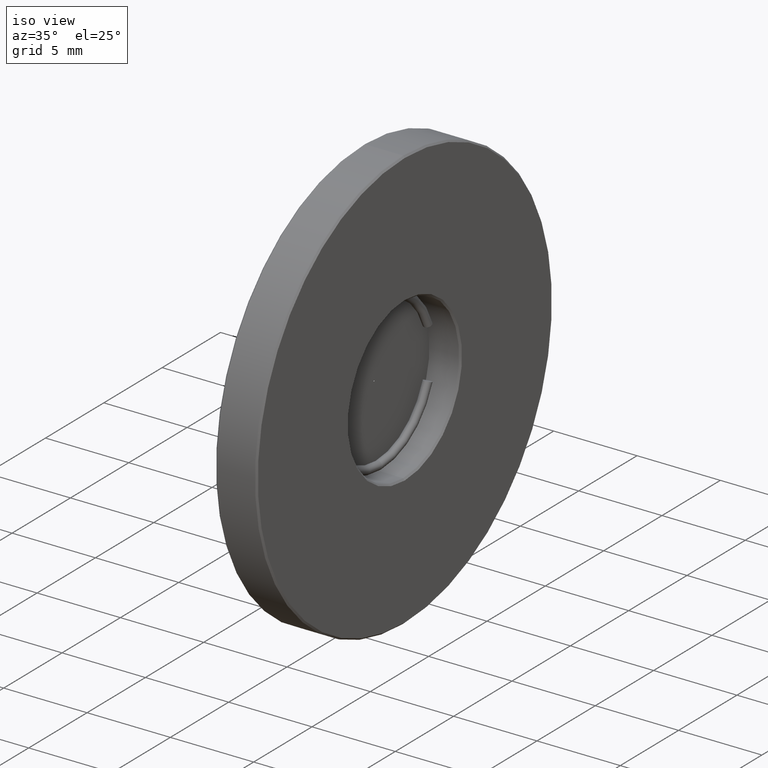
[diagram: clean part render]
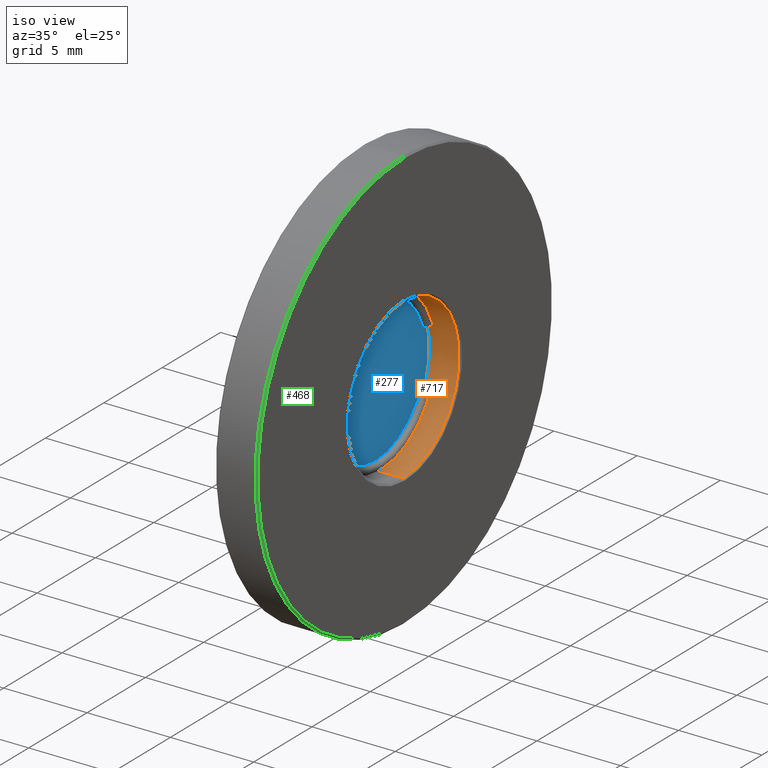
[diagram: same view with three faces highlighted in distinct colors, each labeled with its STEP entity id]
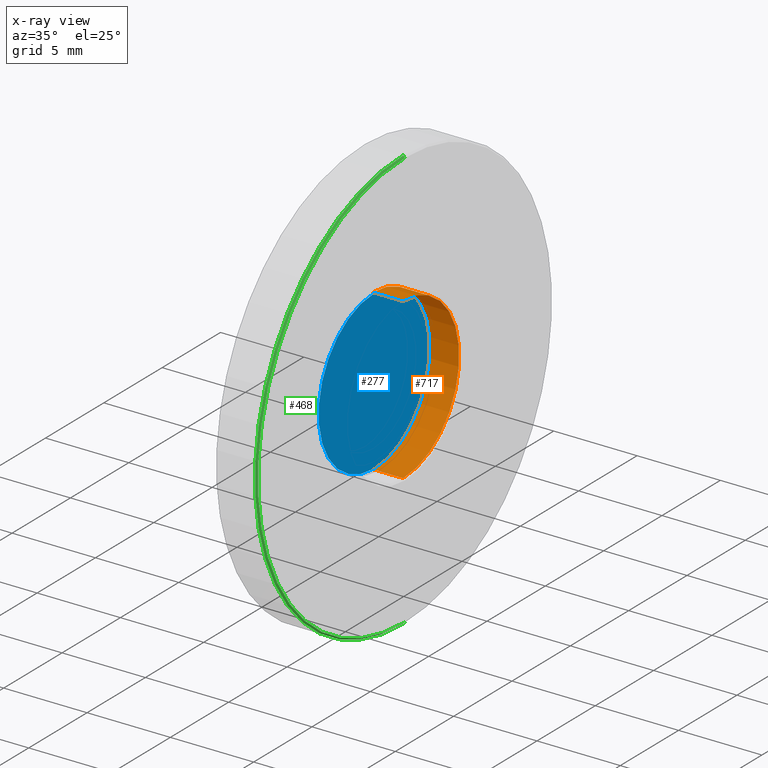
[diagram: x-ray of the same camera — body ghosted, the three highlighted faces saturated]
A machine part, iso view with three faces highlighted in distinct colors.
The next image is the same camera in x-ray (body ghosted, the three faces saturated) — at least one of them is partly hidden behind the body in this view.
Their STEP definitions:

[orange] entity #717 — the highlighted cylindrical surface (partial cylindrical patch) has radius 4.8 mm, axis along (1, 0, 0).
#12 = CARTESIAN_POINT ( 'NONE',  ( -4.334863851253203393, 1.436758841085141070, 25.39999999999999858 ) ) ;
#45 = LINE ( 'NONE', #603, #758 ) ;
#67 = DIRECTION ( 'NONE',  ( 1.000000000000000000, 0.0000000000000000000, 0.0000000000000000000 ) ) ;
#77 = ORIENTED_EDGE ( 'NONE', *, *, #420, .F. ) ;
#79 = CARTESIAN_POINT ( 'NONE',  ( -18.51131405003491537, 1.436758841085141070, 25.39999999999999858 ) ) ;
#81 = DIRECTION ( 'NONE',  ( 0.0000000000000000000, 0.0000000000000000000, -1.000000000000000000 ) ) ;
#102 = AXIS2_PLACEMENT_3D ( 'NONE', #12, #380, #374 ) ;
#106 = VERTEX_POINT ( 'NONE', #676 ) ;
#113 = AXIS2_PLACEMENT_3D ( 'NONE', #79, #263, #81 ) ;
#170 = VERTEX_POINT ( 'NONE', #204 ) ;
#181 = CYLINDRICAL_SURFACE ( 'NONE', #113, 4.799999999999998934 ) ;
#204 = CARTESIAN_POINT ( 'NONE',  ( -4.334863851253203393, 1.436758841085141070, 20.60000000000000142 ) ) ;
#212 = ORIENTED_EDGE ( 'NONE', *, *, #585, .F. ) ;
#242 = VERTEX_POINT ( 'NONE', #270 ) ;
#263 = DIRECTION ( 'NONE',  ( 1.000000000000000000, 0.0000000000000000000, 0.0000000000000000000 ) ) ;
#264 = VECTOR ( 'NONE', #67, 1000.000000000000000 ) ;
#270 = CARTESIAN_POINT ( 'NONE',  ( -4.334863851253203393, 1.436758841085141736, 30.19999999999999929 ) ) ;
#374 = DIRECTION ( 'NONE',  ( 0.0000000000000000000, 0.0000000000000000000, -1.000000000000000000 ) ) ;
#380 = DIRECTION ( 'NONE',  ( 1.000000000000000000, 0.0000000000000000000, 0.0000000000000000000 ) ) ;
#386 = CARTESIAN_POINT ( 'NONE',  ( -18.51131405003491537, 1.436758841085141070, 20.60000000000000142 ) ) ;
#412 = LINE ( 'NONE', #386, #264 ) ;
#420 = EDGE_CURVE ( 'NONE', #242, #582, #45, .T. ) ;
#460 = DIRECTION ( 'NONE',  ( 1.000000000000000000, -0.0000000000000000000, -0.0000000000000000000 ) ) ;
#502 = CARTESIAN_POINT ( 'NONE',  ( -2.534863851253202682, 1.436758841085141736, 30.19999999999999929 ) ) ;
#548 = AXIS2_PLACEMENT_3D ( 'NONE', #706, #460, #700 ) ;
#570 = ORIENTED_EDGE ( 'NONE', *, *, #677, .T. ) ;
#582 = VERTEX_POINT ( 'NONE', #502 ) ;
#585 = EDGE_CURVE ( 'NONE', #170, #242, #763, .T. ) ;
#599 = EDGE_LOOP ( 'NONE', ( #77, #212, #664, #570 ) ) ;
#601 = EDGE_CURVE ( 'NONE', #170, #106, #412, .T. ) ;
#603 = CARTESIAN_POINT ( 'NONE',  ( -18.51131405003491537, 1.436758841085141736, 30.19999999999999929 ) ) ;
#623 = FACE_OUTER_BOUND ( 'NONE', #599, .T. ) ;
#662 = DIRECTION ( 'NONE',  ( 1.000000000000000000, 0.0000000000000000000, 0.0000000000000000000 ) ) ;
#664 = ORIENTED_EDGE ( 'NONE', *, *, #601, .T. ) ;
#676 = CARTESIAN_POINT ( 'NONE',  ( -2.534863851253202682, 1.436758841085141070, 20.60000000000000142 ) ) ;
#677 = EDGE_CURVE ( 'NONE', #106, #582, #686, .T. ) ;
#686 = CIRCLE ( 'NONE', #548, 4.799999999999998934 ) ;
#700 = DIRECTION ( 'NONE',  ( 0.0000000000000000000, 0.0000000000000000000, -1.000000000000000000 ) ) ;
#706 = CARTESIAN_POINT ( 'NONE',  ( -2.534863851253202682, 1.436758841085141070, 25.39999999999999858 ) ) ;
#717 = ADVANCED_FACE ( 'NONE', ( #623 ), #181, .F. ) ;
#758 = VECTOR ( 'NONE', #662, 1000.000000000000000 ) ;
#763 = CIRCLE ( 'NONE', #102, 4.799999999999998934 ) ;

[blue] entity #277 — the highlighted planar face has unit normal (1, 0, -0).
#24 = DIRECTION ( 'NONE',  ( 1.000000000000000000, 0.0000000000000000000, 0.0000000000000000000 ) ) ;
#52 = AXIS2_PLACEMENT_3D ( 'NONE', #214, #652, #642 ) ;
#100 = FACE_BOUND ( 'NONE', #663, .T. ) ;
#107 = DIRECTION ( 'NONE',  ( 0.0000000000000000000, 0.0000000000000000000, 1.000000000000000000 ) ) ;
#111 = DIRECTION ( 'NONE',  ( 1.000000000000000000, 0.0000000000000000000, 0.0000000000000000000 ) ) ;
#112 = ORIENTED_EDGE ( 'NONE', *, *, #305, .F. ) ;
#137 = DIRECTION ( 'NONE',  ( 1.000000000000000000, 0.0000000000000000000, 0.0000000000000000000 ) ) ;
#152 = EDGE_CURVE ( 'NONE', #403, #524, #425, .T. ) ;
#194 = EDGE_CURVE ( 'NONE', #289, #572, #319, .T. ) ;
#207 = DIRECTION ( 'NONE',  ( 0.0000000000000000000, 0.0000000000000000000, 1.000000000000000000 ) ) ;
#214 = CARTESIAN_POINT ( 'NONE',  ( -4.284863851253205347, 1.436758841085140181, 25.39999999999999858 ) ) ;
#258 = DIRECTION ( 'NONE',  ( 0.0000000000000000000, 0.0000000000000000000, 1.000000000000000000 ) ) ;
#266 = ORIENTED_EDGE ( 'NONE', *, *, #152, .T. ) ;
#267 = ORIENTED_EDGE ( 'NONE', *, *, #687, .T. ) ;
#276 = FACE_OUTER_BOUND ( 'NONE', #770, .T. ) ;
#277 = ADVANCED_FACE ( 'NONE', ( #276, #100 ), #534, .T. ) ;
#289 = VERTEX_POINT ( 'NONE', #716 ) ;
#305 = EDGE_CURVE ( 'NONE', #572, #289, #492, .T. ) ;
#319 = CIRCLE ( 'NONE', #660, 0.02500000000000071609 ) ;
#325 = CARTESIAN_POINT ( 'NONE',  ( -4.284863851253205347, 1.436758841085140181, 25.39999999999999858 ) ) ;
#343 = AXIS2_PLACEMENT_3D ( 'NONE', #479, #111, #107 ) ;
#403 = VERTEX_POINT ( 'NONE', #414 ) ;
#414 = CARTESIAN_POINT ( 'NONE',  ( -4.284863851253205347, 1.436758841085140181, 30.14999999999999858 ) ) ;
#425 = CIRCLE ( 'NONE', #437, 4.750000000000000888 ) ;
#437 = AXIS2_PLACEMENT_3D ( 'NONE', #325, #137, #258 ) ;
#479 = CARTESIAN_POINT ( 'NONE',  ( -4.284863851253205347, 1.436758841085140181, 25.39999999999999858 ) ) ;
#492 = CIRCLE ( 'NONE', #343, 0.02500000000000071609 ) ;
#524 = VERTEX_POINT ( 'NONE', #795 ) ;
#525 = CARTESIAN_POINT ( 'NONE',  ( -4.284863851253205347, 1.436758841085140181, 25.39999999999999858 ) ) ;
#534 = PLANE ( 'NONE',  #52 ) ;
#562 = AXIS2_PLACEMENT_3D ( 'NONE', #525, #576, #207 ) ;
#572 = VERTEX_POINT ( 'NONE', #621 ) ;
#576 = DIRECTION ( 'NONE',  ( 1.000000000000000000, 0.0000000000000000000, 0.0000000000000000000 ) ) ;
#588 = DIRECTION ( 'NONE',  ( 0.0000000000000000000, 0.0000000000000000000, 1.000000000000000000 ) ) ;
#621 = CARTESIAN_POINT ( 'NONE',  ( -4.284863851253205347, 1.436758841085140181, 25.42500000000000071 ) ) ;
#642 = DIRECTION ( 'NONE',  ( 0.0000000000000000000, 0.0000000000000000000, 1.000000000000000000 ) ) ;
#652 = DIRECTION ( 'NONE',  ( 1.000000000000000000, 0.0000000000000000000, -0.0000000000000000000 ) ) ;
#660 = AXIS2_PLACEMENT_3D ( 'NONE', #709, #24, #588 ) ;
#663 = EDGE_LOOP ( 'NONE', ( #112, #771 ) ) ;
#687 = EDGE_CURVE ( 'NONE', #524, #403, #789, .T. ) ;
#709 = CARTESIAN_POINT ( 'NONE',  ( -4.284863851253205347, 1.436758841085140181, 25.39999999999999858 ) ) ;
#716 = CARTESIAN_POINT ( 'NONE',  ( -4.284863851253205347, 1.436758841085140181, 25.37500000000000000 ) ) ;
#770 = EDGE_LOOP ( 'NONE', ( #266, #267 ) ) ;
#771 = ORIENTED_EDGE ( 'NONE', *, *, #194, .F. ) ;
#789 = CIRCLE ( 'NONE', #562, 4.750000000000000888 ) ;
#795 = CARTESIAN_POINT ( 'NONE',  ( -4.284863851253205347, 1.436758841085139515, 20.64999999999999858 ) ) ;

[green] entity #468 — the highlighted conical surface has half-angle 45 deg.
#14 = FACE_OUTER_BOUND ( 'NONE', #208, .T. ) ;
#92 = EDGE_CURVE ( 'NONE', #551, #609, #766, .T. ) ;
#116 = AXIS2_PLACEMENT_3D ( 'NONE', #516, #761, #334 ) ;
#142 = CONICAL_SURFACE ( 'NONE', #684, 12.59999999999999964, 0.7853981633974569387 ) ;
#167 = DIRECTION ( 'NONE',  ( -1.000000000000000000, 0.0000000000000000000, 0.0000000000000000000 ) ) ;
#179 = EDGE_CURVE ( 'NONE', #494, #376, #221, .T. ) ;
#182 = DIRECTION ( 'NONE',  ( 0.0000000000000000000, 0.0000000000000000000, 1.000000000000000000 ) ) ;
#195 = CARTESIAN_POINT ( 'NONE',  ( -2.434863851253203482, 1.436758841085142402, 12.79999999999999716 ) ) ;
#208 = EDGE_LOOP ( 'NONE', ( #744, #535, #234, #435 ) ) ;
#221 = CIRCLE ( 'NONE', #620, 12.69999999999999929 ) ;
#234 = ORIENTED_EDGE ( 'NONE', *, *, #472, .T. ) ;
#240 = LINE ( 'NONE', #363, #327 ) ;
#304 = DIRECTION ( 'NONE',  ( -1.000000000000000000, 0.0000000000000000000, 0.0000000000000000000 ) ) ;
#320 = CARTESIAN_POINT ( 'NONE',  ( -2.434863851253203482, 1.436758841085141070, 38.00000000000000711 ) ) ;
#327 = VECTOR ( 'NONE', #802, 1000.000000000000000 ) ;
#334 = DIRECTION ( 'NONE',  ( 0.0000000000000000000, 0.0000000000000000000, -1.000000000000000000 ) ) ;
#363 = CARTESIAN_POINT ( 'NONE',  ( -2.434863851253203482, 1.436758841085141070, 38.00000000000000000 ) ) ;
#376 = VERTEX_POINT ( 'NONE', #656 ) ;
#407 = CARTESIAN_POINT ( 'NONE',  ( -2.534863851253199574, 1.436758841085141070, 25.39999999999999858 ) ) ;
#435 = ORIENTED_EDGE ( 'NONE', *, *, #179, .F. ) ;
#456 = EDGE_CURVE ( 'NONE', #609, #494, #507, .T. ) ;
#468 = ADVANCED_FACE ( 'NONE', ( #14 ), #142, .T. ) ;
#472 = EDGE_CURVE ( 'NONE', #551, #376, #240, .T. ) ;
#488 = DIRECTION ( 'NONE',  ( -0.7071067811865414665, 8.659560562355008046E-17, -0.7071067811865536790 ) ) ;
#494 = VERTEX_POINT ( 'NONE', #611 ) ;
#507 = LINE ( 'NONE', #666, #567 ) ;
#516 = CARTESIAN_POINT ( 'NONE',  ( -2.434863851253203482, 1.436758841085141070, 25.39999999999999858 ) ) ;
#535 = ORIENTED_EDGE ( 'NONE', *, *, #92, .F. ) ;
#551 = VERTEX_POINT ( 'NONE', #320 ) ;
#567 = VECTOR ( 'NONE', #488, 1000.000000000000000 ) ;
#609 = VERTEX_POINT ( 'NONE', #195 ) ;
#611 = CARTESIAN_POINT ( 'NONE',  ( -2.534863851253199574, 1.436758841085142402, 12.69999999999999929 ) ) ;
#620 = AXIS2_PLACEMENT_3D ( 'NONE', #407, #167, #762 ) ;
#656 = CARTESIAN_POINT ( 'NONE',  ( -2.534863851253199574, 1.436758841085141070, 38.09999999999999432 ) ) ;
#666 = CARTESIAN_POINT ( 'NONE',  ( -2.434863851253203482, 1.436758841085142402, 12.79999999999999716 ) ) ;
#684 = AXIS2_PLACEMENT_3D ( 'NONE', #739, #304, #182 ) ;
#739 = CARTESIAN_POINT ( 'NONE',  ( -2.434863851253203482, 1.436758841085141070, 25.39999999999999858 ) ) ;
#744 = ORIENTED_EDGE ( 'NONE', *, *, #456, .F. ) ;
#761 = DIRECTION ( 'NONE',  ( 1.000000000000000000, 0.0000000000000000000, 0.0000000000000000000 ) ) ;
#762 = DIRECTION ( 'NONE',  ( 0.0000000000000000000, 0.0000000000000000000, -1.000000000000000000 ) ) ;
#766 = CIRCLE ( 'NONE', #116, 12.60000000000000142 ) ;
#802 = DIRECTION ( 'NONE',  ( -0.7071067811865414665, 0.0000000000000000000, 0.7071067811865536790 ) ) ;